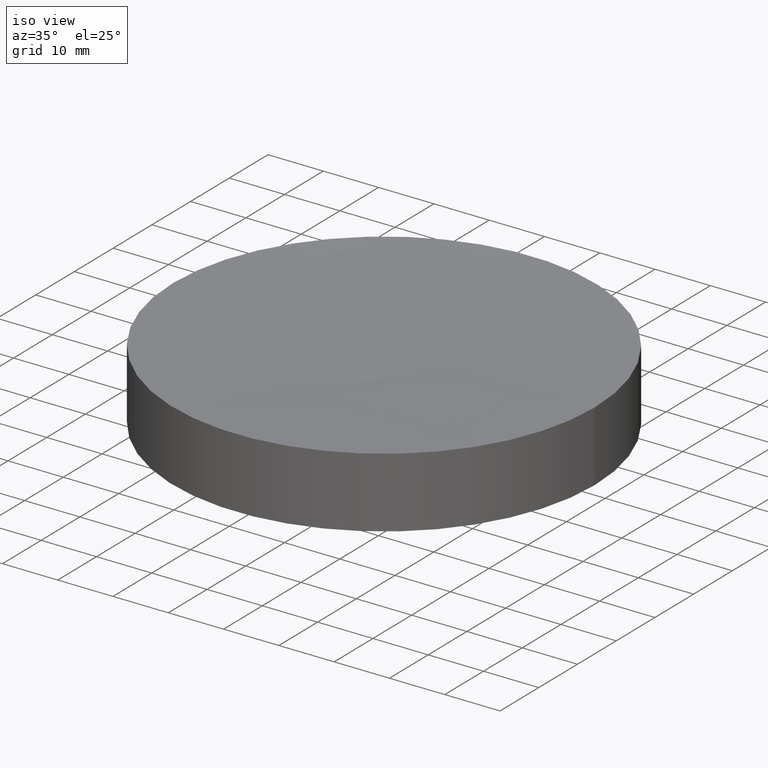
[diagram: clean part render]
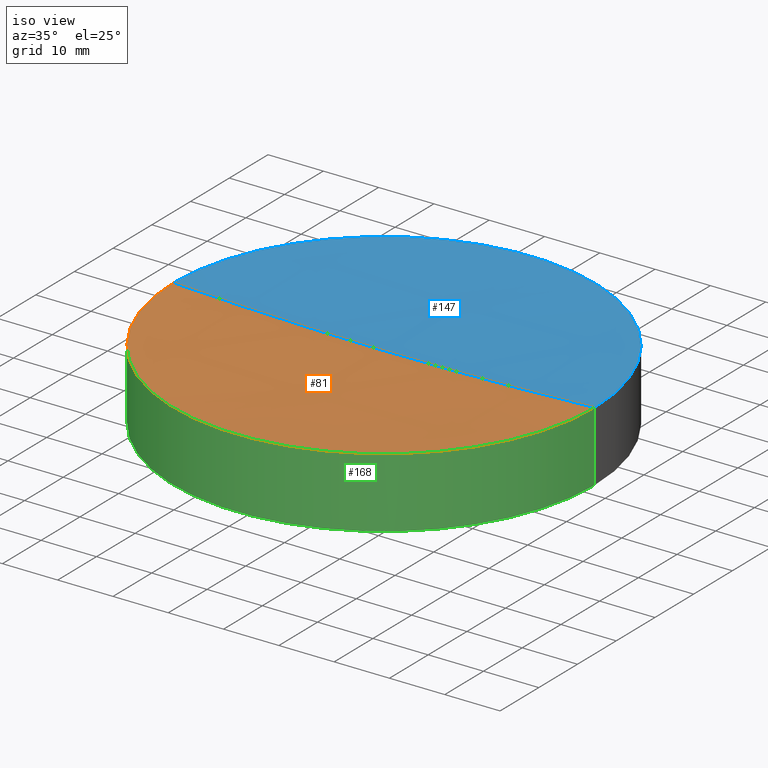
[diagram: same view with three faces highlighted in distinct colors, each labeled with its STEP entity id]
A machine part, iso view with three faces highlighted in distinct colors.
Their STEP definitions:

[orange] entity #81 — the highlighted spherical surface has radius 800 mm.
#1 = DIRECTION ( 'NONE',  ( 1.000000000000000000, 0.000000000000000000, 0.000000000000000000 ) ) ;
#2 = DIRECTION ( 'NONE',  ( 0.000000000000000000, -1.000000000000000000, -0.000000000000000000 ) ) ;
#13 = EDGE_LOOP ( 'NONE', ( #29, #20, #174 ) ) ;
#16 = CIRCLE ( 'NONE', #77, 799.9999999999998863 ) ;
#18 = DIRECTION ( 'NONE',  ( 0.000000000000000000, 1.000000000000000000, -0.000000000000000000 ) ) ;
#20 = ORIENTED_EDGE ( 'NONE', *, *, #132, .F. ) ;
#29 = ORIENTED_EDGE ( 'NONE', *, *, #175, .F. ) ;
#36 = FACE_OUTER_BOUND ( 'NONE', #13, .T. ) ;
#42 = CIRCLE ( 'NONE', #164, 800.0000000000000000 ) ;
#44 = EDGE_CURVE ( 'NONE', #106, #131, #16, .T. ) ;
#48 = VERTEX_POINT ( 'NONE', #161 ) ;
#68 = DIRECTION ( 'NONE',  ( -0.000000000000000000, -0.000000000000000000, -1.000000000000000000 ) ) ;
#71 = CARTESIAN_POINT ( 'NONE',  ( 9.714451465470119729E-14, 0.000000000000000000, 12.70000000000004547 ) ) ;
#72 = CARTESIAN_POINT ( 'NONE',  ( 9.714451465470119729E-14, 0.000000000000000000, 811.7922287195641502 ) ) ;
#77 = AXIS2_PLACEMENT_3D ( 'NONE', #115, #18, #192 ) ;
#81 = ADVANCED_FACE ( 'NONE', ( #36 ), #87, .F. ) ;
#87 = SPHERICAL_SURFACE ( 'NONE', #141, 800.0000000000000000 ) ;
#90 = CIRCLE ( 'NONE', #153, 38.10000000000062670 ) ;
#106 = VERTEX_POINT ( 'NONE', #165 ) ;
#112 = CARTESIAN_POINT ( 'NONE',  ( 1.461303866205953070E-13, 0.000000000000000000, 11.79222871956408980 ) ) ;
#115 = CARTESIAN_POINT ( 'NONE',  ( 9.714451465470119729E-14, 0.000000000000000000, 811.7922287195641502 ) ) ;
#131 = VERTEX_POINT ( 'NONE', #112 ) ;
#132 = EDGE_CURVE ( 'NONE', #106, #48, #90, .T. ) ;
#139 = DIRECTION ( 'NONE',  ( 1.224646799147353207E-16, -1.000000000000000000, 0.000000000000000000 ) ) ;
#141 = AXIS2_PLACEMENT_3D ( 'NONE', #179, #2, #1 ) ;
#153 = AXIS2_PLACEMENT_3D ( 'NONE', #71, #68, #177 ) ;
#161 = CARTESIAN_POINT ( 'NONE',  ( -38.10000000000052722, 0.000000000000000000, 12.70000000000004547 ) ) ;
#164 = AXIS2_PLACEMENT_3D ( 'NONE', #72, #139, #195 ) ;
#165 = CARTESIAN_POINT ( 'NONE',  ( 38.10000000000072617, 4.665904304751504439E-15, 12.70000000000004547 ) ) ;
#174 = ORIENTED_EDGE ( 'NONE', *, *, #44, .T. ) ;
#175 = EDGE_CURVE ( 'NONE', #48, #131, #42, .T. ) ;
#177 = DIRECTION ( 'NONE',  ( 1.000000000000000000, 0.000000000000000000, 0.000000000000000000 ) ) ;
#179 = CARTESIAN_POINT ( 'NONE',  ( 9.714451465470119729E-14, 0.000000000000000000, 811.7922287195641502 ) ) ;
#192 = DIRECTION ( 'NONE',  ( 0.000000000000000000, 0.000000000000000000, 1.000000000000000000 ) ) ;
#195 = DIRECTION ( 'NONE',  ( 1.000000000000000000, 1.224646799147353207E-16, 0.000000000000000000 ) ) ;

[blue] entity #147 — the highlighted spherical surface has radius 800 mm.
#16 = CIRCLE ( 'NONE', #77, 799.9999999999998863 ) ;
#18 = DIRECTION ( 'NONE',  ( 0.000000000000000000, 1.000000000000000000, -0.000000000000000000 ) ) ;
#28 = CIRCLE ( 'NONE', #60, 38.10000000000062670 ) ;
#31 = ORIENTED_EDGE ( 'NONE', *, *, #44, .F. ) ;
#38 = DIRECTION ( 'NONE',  ( 1.000000000000000000, 0.000000000000000000, 0.000000000000000000 ) ) ;
#42 = CIRCLE ( 'NONE', #164, 800.0000000000000000 ) ;
#44 = EDGE_CURVE ( 'NONE', #106, #131, #16, .T. ) ;
#48 = VERTEX_POINT ( 'NONE', #161 ) ;
#60 = AXIS2_PLACEMENT_3D ( 'NONE', #137, #191, #82 ) ;
#62 = AXIS2_PLACEMENT_3D ( 'NONE', #181, #194, #38 ) ;
#72 = CARTESIAN_POINT ( 'NONE',  ( 9.714451465470119729E-14, 0.000000000000000000, 811.7922287195641502 ) ) ;
#77 = AXIS2_PLACEMENT_3D ( 'NONE', #115, #18, #192 ) ;
#82 = DIRECTION ( 'NONE',  ( 1.000000000000000000, 0.000000000000000000, 0.000000000000000000 ) ) ;
#93 = ORIENTED_EDGE ( 'NONE', *, *, #175, .T. ) ;
#106 = VERTEX_POINT ( 'NONE', #165 ) ;
#109 = EDGE_LOOP ( 'NONE', ( #148, #93, #31 ) ) ;
#112 = CARTESIAN_POINT ( 'NONE',  ( 1.461303866205953070E-13, 0.000000000000000000, 11.79222871956408980 ) ) ;
#115 = CARTESIAN_POINT ( 'NONE',  ( 9.714451465470119729E-14, 0.000000000000000000, 811.7922287195641502 ) ) ;
#125 = EDGE_CURVE ( 'NONE', #48, #106, #28, .T. ) ;
#131 = VERTEX_POINT ( 'NONE', #112 ) ;
#137 = CARTESIAN_POINT ( 'NONE',  ( 9.714451465470119729E-14, 0.000000000000000000, 12.70000000000004547 ) ) ;
#138 = SPHERICAL_SURFACE ( 'NONE', #62, 800.0000000000000000 ) ;
#139 = DIRECTION ( 'NONE',  ( 1.224646799147353207E-16, -1.000000000000000000, 0.000000000000000000 ) ) ;
#147 = ADVANCED_FACE ( 'NONE', ( #183 ), #138, .F. ) ;
#148 = ORIENTED_EDGE ( 'NONE', *, *, #125, .F. ) ;
#161 = CARTESIAN_POINT ( 'NONE',  ( -38.10000000000052722, 0.000000000000000000, 12.70000000000004547 ) ) ;
#164 = AXIS2_PLACEMENT_3D ( 'NONE', #72, #139, #195 ) ;
#165 = CARTESIAN_POINT ( 'NONE',  ( 38.10000000000072617, 4.665904304751504439E-15, 12.70000000000004547 ) ) ;
#175 = EDGE_CURVE ( 'NONE', #48, #131, #42, .T. ) ;
#181 = CARTESIAN_POINT ( 'NONE',  ( 9.714451465470119729E-14, 0.000000000000000000, 811.7922287195641502 ) ) ;
#183 = FACE_OUTER_BOUND ( 'NONE', #109, .T. ) ;
#191 = DIRECTION ( 'NONE',  ( -0.000000000000000000, -0.000000000000000000, -1.000000000000000000 ) ) ;
#192 = DIRECTION ( 'NONE',  ( 0.000000000000000000, 0.000000000000000000, 1.000000000000000000 ) ) ;
#194 = DIRECTION ( 'NONE',  ( 0.000000000000000000, -1.000000000000000000, -0.000000000000000000 ) ) ;
#195 = DIRECTION ( 'NONE',  ( 1.000000000000000000, 1.224646799147353207E-16, 0.000000000000000000 ) ) ;

[green] entity #168 — the highlighted cylindrical surface (partial cylindrical patch) has radius 38.1 mm, axis along (-0, -0, -1).
#5 = FACE_OUTER_BOUND ( 'NONE', #163, .T. ) ;
#6 = DIRECTION ( 'NONE',  ( -1.000000000000000000, 0.000000000000000000, 0.000000000000000000 ) ) ;
#15 = AXIS2_PLACEMENT_3D ( 'NONE', #21, #154, #6 ) ;
#17 = LINE ( 'NONE', #117, #160 ) ;
#19 = CARTESIAN_POINT ( 'NONE',  ( 38.10000000000000142, 4.665904304751416087E-15, 0.000000000000000000 ) ) ;
#21 = CARTESIAN_POINT ( 'NONE',  ( 0.000000000000000000, 0.000000000000000000, 12.69999999999999929 ) ) ;
#25 = EDGE_CURVE ( 'NONE', #106, #110, #17, .T. ) ;
#34 = CARTESIAN_POINT ( 'NONE',  ( -38.10000000000000142, 0.000000000000000000, 12.69999999999999929 ) ) ;
#48 = VERTEX_POINT ( 'NONE', #161 ) ;
#49 = VECTOR ( 'NONE', #98, 1000.000000000000000 ) ;
#55 = LINE ( 'NONE', #34, #49 ) ;
#65 = ORIENTED_EDGE ( 'NONE', *, *, #25, .F. ) ;
#66 = DIRECTION ( 'NONE',  ( 0.000000000000000000, 0.000000000000000000, 1.000000000000000000 ) ) ;
#68 = DIRECTION ( 'NONE',  ( -0.000000000000000000, -0.000000000000000000, -1.000000000000000000 ) ) ;
#71 = CARTESIAN_POINT ( 'NONE',  ( 9.714451465470119729E-14, 0.000000000000000000, 12.70000000000004547 ) ) ;
#85 = CARTESIAN_POINT ( 'NONE',  ( -38.10000000000000142, 0.000000000000000000, 0.000000000000000000 ) ) ;
#90 = CIRCLE ( 'NONE', #153, 38.10000000000062670 ) ;
#95 = ORIENTED_EDGE ( 'NONE', *, *, #132, .T. ) ;
#97 = CARTESIAN_POINT ( 'NONE',  ( 0.000000000000000000, 0.000000000000000000, 0.000000000000000000 ) ) ;
#98 = DIRECTION ( 'NONE',  ( -0.000000000000000000, -0.000000000000000000, -1.000000000000000000 ) ) ;
#99 = CYLINDRICAL_SURFACE ( 'NONE', #15, 38.10000000000000142 ) ;
#105 = EDGE_CURVE ( 'NONE', #144, #110, #187, .T. ) ;
#106 = VERTEX_POINT ( 'NONE', #165 ) ;
#110 = VERTEX_POINT ( 'NONE', #19 ) ;
#117 = CARTESIAN_POINT ( 'NONE',  ( 38.10000000000000142, 4.665904304751416087E-15, 12.69999999999999929 ) ) ;
#123 = AXIS2_PLACEMENT_3D ( 'NONE', #97, #66, #134 ) ;
#130 = ORIENTED_EDGE ( 'NONE', *, *, #105, .T. ) ;
#132 = EDGE_CURVE ( 'NONE', #106, #48, #90, .T. ) ;
#134 = DIRECTION ( 'NONE',  ( 1.000000000000000000, 0.000000000000000000, 0.000000000000000000 ) ) ;
#140 = EDGE_CURVE ( 'NONE', #48, #144, #55, .T. ) ;
#144 = VERTEX_POINT ( 'NONE', #85 ) ;
#151 = DIRECTION ( 'NONE',  ( -0.000000000000000000, -0.000000000000000000, -1.000000000000000000 ) ) ;
#153 = AXIS2_PLACEMENT_3D ( 'NONE', #71, #68, #177 ) ;
#154 = DIRECTION ( 'NONE',  ( -0.000000000000000000, -0.000000000000000000, -1.000000000000000000 ) ) ;
#159 = ORIENTED_EDGE ( 'NONE', *, *, #140, .T. ) ;
#160 = VECTOR ( 'NONE', #151, 1000.000000000000000 ) ;
#161 = CARTESIAN_POINT ( 'NONE',  ( -38.10000000000052722, 0.000000000000000000, 12.70000000000004547 ) ) ;
#163 = EDGE_LOOP ( 'NONE', ( #65, #95, #159, #130 ) ) ;
#165 = CARTESIAN_POINT ( 'NONE',  ( 38.10000000000072617, 4.665904304751504439E-15, 12.70000000000004547 ) ) ;
#168 = ADVANCED_FACE ( 'NONE', ( #5 ), #99, .T. ) ;
#177 = DIRECTION ( 'NONE',  ( 1.000000000000000000, 0.000000000000000000, 0.000000000000000000 ) ) ;
#187 = CIRCLE ( 'NONE', #123, 38.10000000000000142 ) ;